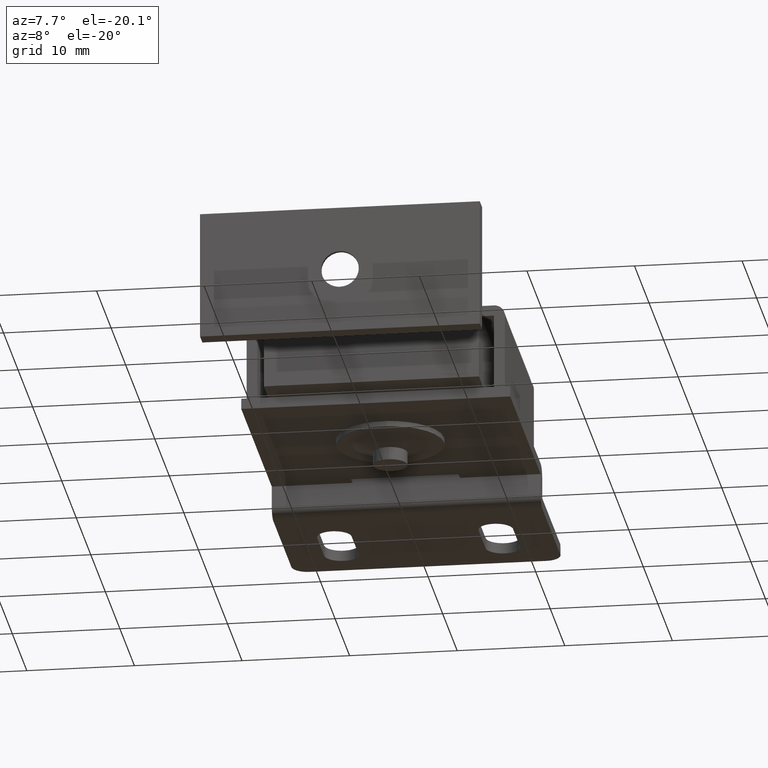
[diagram: clean part render]
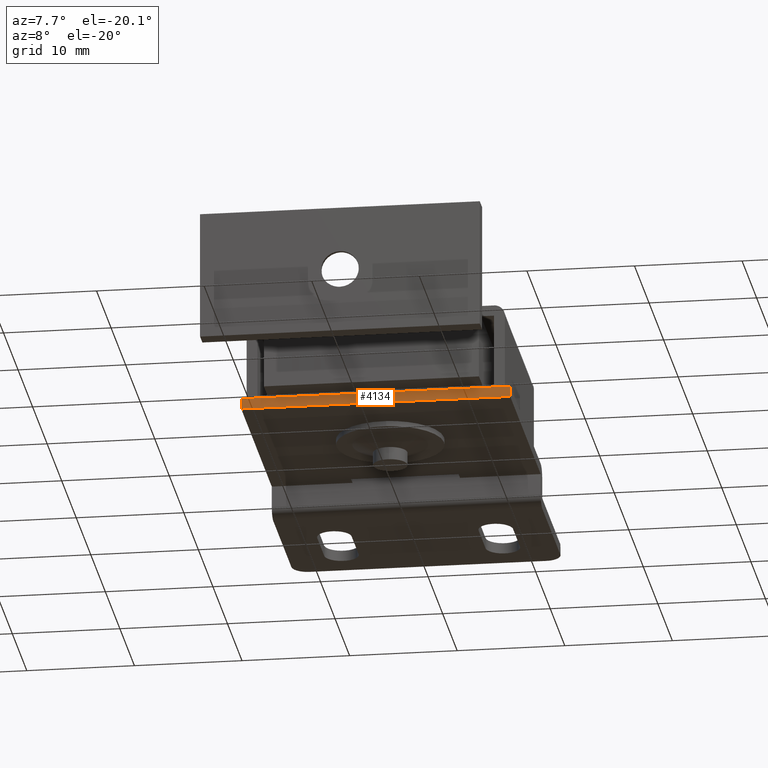
[diagram: same view with one face highlighted and labeled with its STEP entity id]
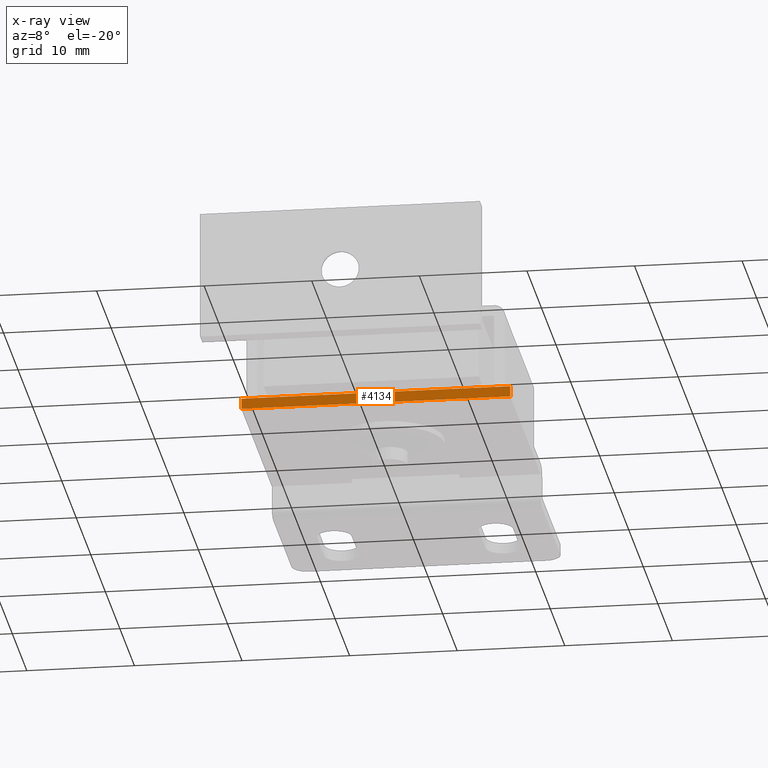
[diagram: x-ray of the same camera — body ghosted, the highlighted face saturated]
A machine part, auxiliary view. The second image highlights one B-rep face of the part: STEP entity #4134.
The next image is the same camera in x-ray: the body ghosted, the highlighted face saturated — about 0% of this face is hidden behind the body in this view.
In plain terms, the highlighted face is a freeform B-spline surface patch.
Its self-contained STEP definition (entity closure, byte-faithful):
#3860=CARTESIAN_POINT('',(12.500000000000000,-36.0,3.0));
#3861=VERTEX_POINT('',#3860);
#3867=CARTESIAN_POINT('',(-12.500002000000000,-36.0,3.0));
#3868=VERTEX_POINT('',#3867);
#3869=CARTESIAN_POINT('',(12.500000000000000,-36.0,3.0));
#3870=CARTESIAN_POINT('',(-12.500002000000000,-36.0,3.0));
#3871=QUASI_UNIFORM_CURVE('',1,(#3869,#3870),.UNSPECIFIED.,.F.,.U.);
#3872=EDGE_CURVE('',#3861,#3868,#3871,.T.);
#4015=CARTESIAN_POINT('',(-12.500002000000000,-36.0,4.0));
#4016=VERTEX_POINT('',#4015);
#4017=CARTESIAN_POINT('',(-12.500002000000000,-36.0,4.0));
#4018=CARTESIAN_POINT('',(-12.500002000000000,-36.0,3.0));
#4019=QUASI_UNIFORM_CURVE('',1,(#4017,#4018),.UNSPECIFIED.,.F.,.U.);
#4020=EDGE_CURVE('',#4016,#3868,#4019,.T.);
#4070=CARTESIAN_POINT('',(12.500000000000000,-36.0,4.0));
#4071=VERTEX_POINT('',#4070);
#4077=CARTESIAN_POINT('',(12.500000000000000,-36.0,4.0));
#4078=CARTESIAN_POINT('',(12.500000000000000,-36.0,3.0));
#4079=QUASI_UNIFORM_CURVE('',1,(#4077,#4078),.UNSPECIFIED.,.F.,.U.);
#4080=EDGE_CURVE('',#4071,#3861,#4079,.T.);
#4119=CARTESIAN_POINT('',(-13.748752051445150,-36.0,2.950050001938193));
#4120=CARTESIAN_POINT('',(-13.748752051445150,-36.0,4.049950024883896));
#4121=CARTESIAN_POINT('',(13.748750721997450,-36.0,2.950050001938193));
#4122=CARTESIAN_POINT('',(13.748750721997450,-36.0,4.049950024883896));
#4123=B_SPLINE_SURFACE_WITH_KNOTS('',1,1,((#4119,#4121),(#4120,#4122)),.UNSPECIFIED.,.F.,.F.,.U.,(2,2),(2,2),(0.041708334948495,0.958291687403247),(0.0,27.497502773442601),.UNSPECIFIED.);
#4124=ORIENTED_EDGE('',*,*,#4020,.T.);
#4125=ORIENTED_EDGE('',*,*,#3872,.F.);
#4126=ORIENTED_EDGE('',*,*,#4080,.F.);
#4127=CARTESIAN_POINT('',(12.500000000000000,-36.0,4.0));
#4128=CARTESIAN_POINT('',(-12.500002000000000,-36.0,4.0));
#4129=QUASI_UNIFORM_CURVE('',1,(#4127,#4128),.UNSPECIFIED.,.F.,.U.);
#4130=EDGE_CURVE('',#4071,#4016,#4129,.T.);
#4131=ORIENTED_EDGE('',*,*,#4130,.T.);
#4132=EDGE_LOOP('',(#4124,#4125,#4126,#4131));
#4133=FACE_OUTER_BOUND('',#4132,.T.);
#4134=ADVANCED_FACE('',(#4133),#4123,.F.);